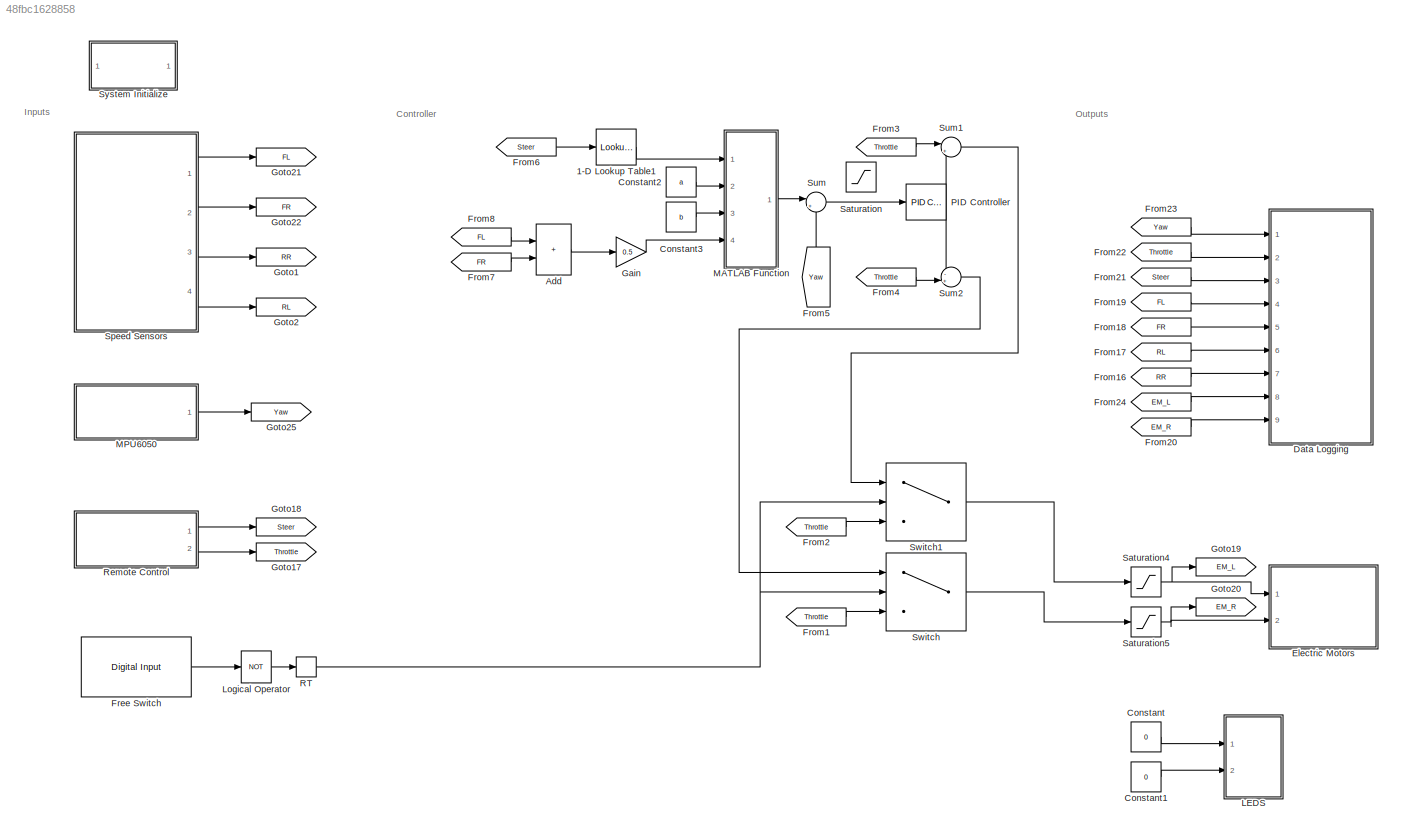
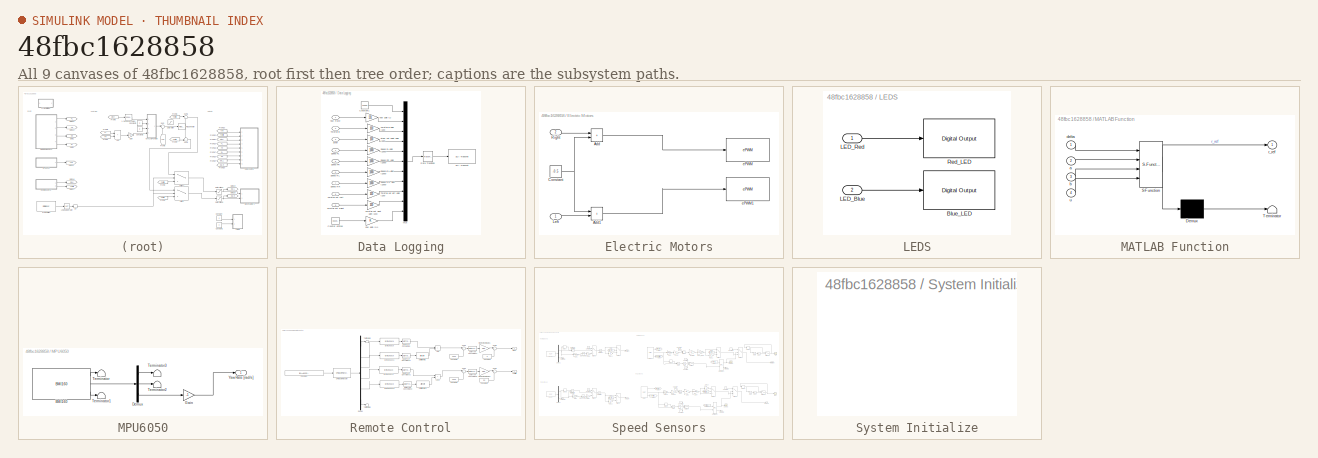
[diagram: thumbnail index - all 9 canvases of the model, root first then tree order]
MODEL slx_48fbc1628858
KIND model
CONFIG AbsTol = auto
CONFIG EnableMultiTasking = on
CONFIG FixedStep = Ts
CONFIG MaxStep = auto
CONFIG MinStep = auto
CONFIG RelTol = 1e-3
CONFIG SampleTimeConstraint = Unconstrained
CONFIG SolverName = FixedStepDiscrete
CONFIG StartTime = 0
CONFIG StopTime = Inf
WORKSPACE source: mxarray member
WORKSPACE R_wheel = 0.0565
WORKSPACE W = 0.055
WORKSPACE WD = 0.573125555665
WORKSPACE a = 0.306622172281
WORKSPACE b = 0.228377827719
WORKSPACE c = 0.38
WORKSPACE l = 0.535
WORKSPACE m = 13497.3333333
WORKSPACE m_LF = 2867.66666667
WORKSPACE m_LR = 3883.33333333
WORKSPACE m_RF = 2894
WORKSPACE m_RR = 3852.33333333
WORKSPACE m_f = 5761.66666667
WORKSPACE m_r = 7735.66666667
BLOCK [Lookup_n-D] 1-D Lookup Table1
  BreakpointsForDimension1 = [-50:50]
  InputPortMap = u0
  InternalRulePriority = Speed
  NumberOfTableDimensions = 1
  Ports = [1, 1]
  RndMeth = Simplest
  Table = -(([-50:50])/100)*0.4363*2
BLOCK [Sum] Add
  IconShape = rectangular
  Ports = [2, 1]
BLOCK [Constant] Constant
  Value = 0
BLOCK [Constant] Constant1
  Value = 0
BLOCK [Constant] Constant2
  Value = a
BLOCK [Constant] Constant3
  Value = b
BLOCK [SubSystem] Data Logging
  Ports = [9]
  RequestExecContextInheritance = off
BLOCK [Constant] Data Logging/Constant1
  OutDataTypeStr = int16
  SampleTime = 0.005
  Value = 32000
BLOCK [Reference] Data Logging/Counter Limited  REF=simulink/Sources/Counter
Limited
  Ports = [0, 1]
  SourceBlock = simulink/Sources/Counter\nLimited
  SourceProductBaseCode = SL
  SourceType = Counter Limited
BLOCK [Mux] Data Logging/Mux
  DisplayOption = bar
  Inputs = 11
  Ports = [11, 1]
BLOCK [RateTransition] Data Logging/Rate Transition
  OutPortSampleTime = 0.01
BLOCK [Reference] Data Logging/SCI Transmit  REF=c280xlib/SCI Transmit
  Ports = [1]
  SourceBlock = c280xlib/SCI Transmit
  SourceProductBaseCode = TIC2000
  SourceType = C28x SCI Transmit
BLOCK [Inport] Data Logging/Speed FL
  Port = 4
BLOCK [Gain] Data Logging/Speed FL gain (1000)
  Gain = 1000
  OutDataTypeStr = int16
BLOCK [Inport] Data Logging/Speed FR
  Port = 5
BLOCK [Gain] Data Logging/Speed FR gain (1000)
  Gain = 1000
  OutDataTypeStr = int16
BLOCK [Inport] Data Logging/Speed RL
  Port = 6
BLOCK [Gain] Data Logging/Speed RL gian (1000)
  Gain = 1000
  OutDataTypeStr = int16
BLOCK [Inport] Data Logging/Speed RR
  Port = 7
BLOCK [Gain] Data Logging/Speed RR gian (1000)
  Gain = 1000
  OutDataTypeStr = int16
BLOCK [Inport] Data Logging/Steer
  Port = 3
BLOCK [Gain] Data Logging/Steer set point gain (100)
  Gain = 100
  OutDataTypeStr = int16
BLOCK [Inport] Data Logging/Throttle in
  Port = 2
BLOCK [Gain] Data Logging/Throttle in gain (100)
  Gain = 100
  OutDataTypeStr = int16
BLOCK [Inport] Data Logging/Throttle out Left
  Port = 8
BLOCK [Inport] Data Logging/Throttle out Right
  Port = 9
BLOCK [Gain] Data Logging/Throttle out left gain (100)
  Gain = 100
  OutDataTypeStr = int16
BLOCK [Gain] Data Logging/Throttle out right gain (100)
  Gain = 100
  OutDataTypeStr = int16
BLOCK [Inport] Data Logging/Yaw Rate
BLOCK [Gain] Data Logging/Yaw gain (1)
  Gain = 131
  OutDataTypeStr = int16
BLOCK [Gain] Data Logging/Yaw gain (1)1
  OutDataTypeStr = int16
BLOCK [SubSystem] Electric Motors
  Ports = [2]
  RequestExecContextInheritance = off
BLOCK [Sum] Electric Motors/Add
  IconShape = rectangular
  Ports = [2, 1]
BLOCK [Sum] Electric Motors/Add1
  IconShape = rectangular
  Ports = [2, 1]
BLOCK [Constant] Electric Motors/Constant
  Value = -0.5
BLOCK [Inport] Electric Motors/Left
BLOCK [Inport] Electric Motors/Right
  Port = 2
BLOCK [Reference] Electric Motors/ePWM  REF=c2802xlib/ePWM
  Ports = [1]
  SourceBlock = c2802xlib/ePWM
  SourceProductBaseCode = TIC2000
  SourceType = C2802x/03x/05x/06x/M3x/37x/07x/004x/38x/002x ePWM
  UserDataPersistent = on
BLOCK [Reference] Electric Motors/ePWM1  REF=c2802xlib/ePWM
  Ports = [1]
  SourceBlock = c2802xlib/ePWM
  SourceProductBaseCode = TIC2000
  SourceType = C2802x/03x/05x/06x/M3x/37x/07x/004x/38x/002x ePWM
  UserDataPersistent = on
BLOCK [Reference] Free Switch  REF=c2837xDlib/Digital Input
  Ports = [0, 1]
  SourceBlock = c2837xDlib/Digital Input
  SourceProductBaseCode = TIC2000
  SourceType = F2837x GPIO Digital Input
  UserDataPersistent = on
BLOCK [From] From1
  GotoTag = Throttle
BLOCK [From] From16
  GotoTag = RR
BLOCK [From] From17
  GotoTag = RL
BLOCK [From] From18
  GotoTag = FR
BLOCK [From] From19
  GotoTag = FL
BLOCK [From] From2
  GotoTag = Throttle
BLOCK [From] From20
  GotoTag = EM_R
BLOCK [From] From21
  GotoTag = Steer
BLOCK [From] From22
  GotoTag = Throttle
BLOCK [From] From23
  GotoTag = Yaw
BLOCK [From] From24
  GotoTag = EM_L
BLOCK [From] From3
  GotoTag = Throttle
BLOCK [From] From4
  GotoTag = Throttle
BLOCK [From] From5
  GotoTag = Yaw
  NameLocation = right
BLOCK [From] From6
  GotoTag = Steer
BLOCK [From] From7
  GotoTag = FR
BLOCK [From] From8
  GotoTag = FL
BLOCK [Gain] Gain
  Gain = 0.5
BLOCK [Goto] Goto1
  GotoTag = RR
BLOCK [Goto] Goto17
  GotoTag = Throttle
BLOCK [Goto] Goto18
  GotoTag = Steer
BLOCK [Goto] Goto19
  GotoTag = EM_L
BLOCK [Goto] Goto2
  GotoTag = RL
BLOCK [Goto] Goto20
  GotoTag = EM_R
BLOCK [Goto] Goto21
  GotoTag = FL
BLOCK [Goto] Goto22
  GotoTag = FR
BLOCK [Goto] Goto25
  GotoTag = Yaw
BLOCK [SubSystem] LEDS
  Ports = [2]
  RequestExecContextInheritance = off
BLOCK [Reference] LEDS/Blue_LED  REF=c2837xDlib/Digital Output
  Ports = [1]
  SourceBlock = c2837xDlib/Digital Output
  SourceProductBaseCode = TIC2000
  SourceType = F2837x GPIO Digital Output
  UserDataPersistent = on
BLOCK [Inport] LEDS/LED_Blue
  Port = 2
BLOCK [Inport] LEDS/LED_Red
BLOCK [Reference] LEDS/Red_LED  REF=c2837xDlib/Digital Output
  Ports = [1]
  SourceBlock = c2837xDlib/Digital Output
  SourceProductBaseCode = TIC2000
  SourceType = F2837x GPIO Digital Output
  UserDataPersistent = on
BLOCK [Logic] Logical Operator
  AllPortsSameDT = off
  Operator = NOT
  OutDataTypeStr = boolean
  Ports = [1, 1]
BLOCK [SubSystem] MATLAB Function
  ErrorFcn = Stateflow.Translate.translate
  PermitHierarchicalResolution = ExplicitOnly
  Ports = [4, 1]
  RequestExecContextInheritance = off
  SFBlockType = MATLAB Function
  TreatAsAtomicUnit = on
BLOCK [Demux] MATLAB Function/ Demux 
  Outputs = 1
  Ports = [1, 1]
BLOCK [S-Function] MATLAB Function/ SFunction 
  EnableBusSupport = on
  FunctionName = sf_sfun
  PortCounts = [4 2]
  Ports = [4, 2]
  SFcnIsStateOwnerBlock = off
  SFunctionDeploymentMode = off
  Tag = Stateflow S-Function 2
BLOCK [Terminator] MATLAB Function/ Terminator 
BLOCK [Inport] MATLAB Function/a
  Port = 2
BLOCK [Inport] MATLAB Function/b
  Port = 3
BLOCK [Inport] MATLAB Function/delta
BLOCK [Outport] MATLAB Function/r_ref
BLOCK [Inport] MATLAB Function/u
  Port = 4
BLOCK [SubSystem] MPU6050
  Ports = [0, 1]
  RequestExecContextInheritance = off
BLOCK [Reference] MPU6050/BMI160  REF=c2000sensorslib/BMI160
  Ports = [0, 3]
  SourceBlock = c2000sensorslib/BMI160
  SourceProductBaseCode = TIC2000
  SourceType = matlabshared.sensors.simulink.BMI160Block
BLOCK [Demux] MPU6050/Demux
  Outputs = 3
  Ports = [1, 3]
BLOCK [Gain] MPU6050/Gain
  Gain = -1
BLOCK [Terminator] MPU6050/Terminator
BLOCK [Terminator] MPU6050/Terminator1
BLOCK [Terminator] MPU6050/Terminator2
BLOCK [Terminator] MPU6050/Terminator3
BLOCK [Outport] MPU6050/Yaw Rate [rad//s]
  VectorParamsAs1DForOutWhenUnconnected = off
BLOCK [Reference] PID Controller  REF=slpidlib/PID Controller
  Ports = [1, 1]
  SourceBlock = slpidlib/PID Controller
  SourceProductBaseCode = SL
  SourceType = PID 1dof
BLOCK [RateTransition] RT
  OutPortSampleTime = 0.005
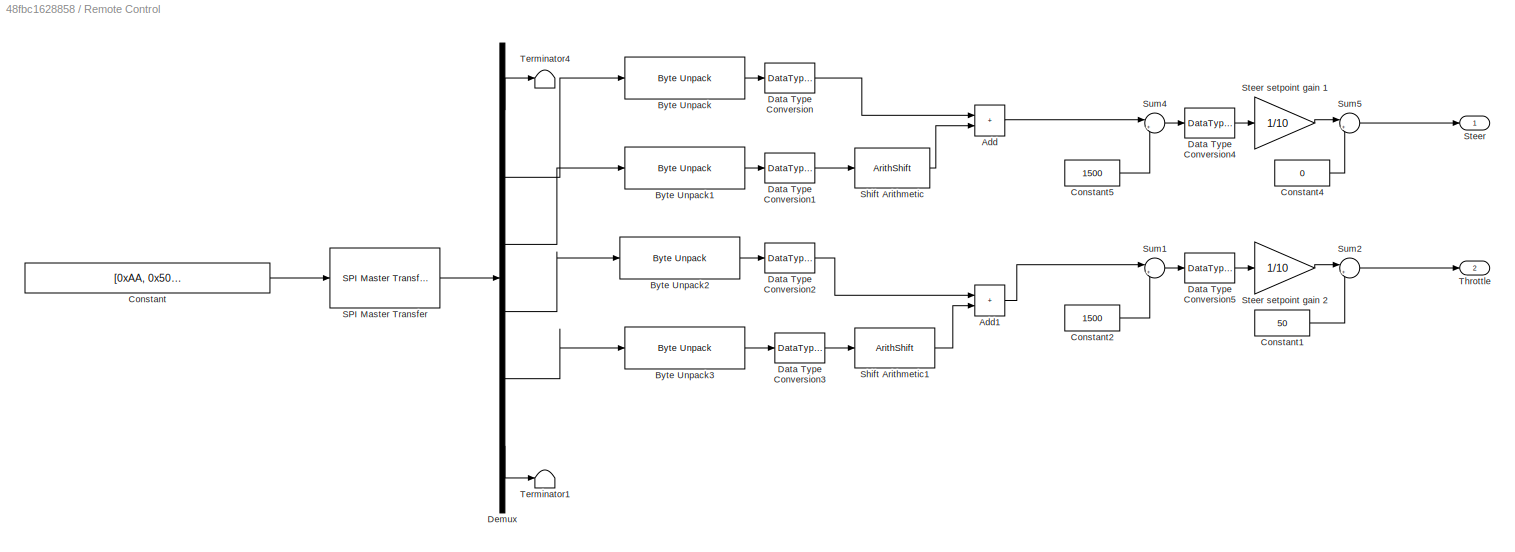
BLOCK [SubSystem] Remote Control
  Ports = [0, 2]
  RequestExecContextInheritance = off
BLOCK [Sum] Remote Control/Add
  IconShape = rectangular
  Ports = [2, 1]
BLOCK [Sum] Remote Control/Add1
  IconShape = rectangular
  Ports = [2, 1]
BLOCK [Reference] Remote Control/Byte Unpack  REF=svdutilitieslib/Byte Unpack
  Ports = [1, 1]
  SourceBlock = svdutilitieslib/Byte Unpack
  SourceProductBaseCode = ANDROID,ARDUINO,ML_ARDUINO,ECCORTEXA,ECCORTEXR,SC_BEAGLEBONE_BLUE,EC_FREEDOM_BOARD,EC_FRDM_K64F,INTEL_BLOCKSET,MICROBIT,NUCLEO,NVIDIA,PX4AUTOPILOTS,RASPPIIO,STMICRODIS,TIC2000,XILINX_BLOCKSET  <repeated x4 — deduplicated; at blocks: Byte Unpack, Byte Unpack1, Byte Unpack2, Byte Unpack3>
  SourceType = Byte Unpack
BLOCK [Reference] Remote Control/Byte Unpack1  REF=svdutilitieslib/Byte Unpack
  Ports = [1, 1]
  SourceBlock = svdutilitieslib/Byte Unpack
  SourceType = Byte Unpack
BLOCK [Reference] Remote Control/Byte Unpack2  REF=svdutilitieslib/Byte Unpack
  Ports = [1, 1]
  SourceBlock = svdutilitieslib/Byte Unpack
  SourceType = Byte Unpack
BLOCK [Reference] Remote Control/Byte Unpack3  REF=svdutilitieslib/Byte Unpack
  Ports = [1, 1]
  SourceBlock = svdutilitieslib/Byte Unpack
  SourceType = Byte Unpack
BLOCK [Constant] Remote Control/Constant
  OutDataTypeStr = uint16
  Value = [0xAA, 0x50, 0x04, 0xA0, 232, 3]
BLOCK [Constant] Remote Control/Constant1
  OutDataTypeStr = single
  SampleTime = 0.005
  Value = 50
BLOCK [Constant] Remote Control/Constant2
  OutDataTypeStr = single
  SampleTime = Ts
  Value = 1500
BLOCK [Constant] Remote Control/Constant4
  OutDataTypeStr = single
  SampleTime = 0.005
  Value = 0
BLOCK [Constant] Remote Control/Constant5
  OutDataTypeStr = single
  SampleTime = Ts
  Value = 1500
BLOCK [DataTypeConversion] Remote Control/Data Type Conversion
  OutDataTypeStr = uint16
  RndMeth = Floor
  SaturateOnIntegerOverflow = off
BLOCK [DataTypeConversion] Remote Control/Data Type Conversion1
  OutDataTypeStr = uint16
  RndMeth = Floor
  SaturateOnIntegerOverflow = off
BLOCK [DataTypeConversion] Remote Control/Data Type Conversion2
  OutDataTypeStr = uint16
  RndMeth = Floor
  SaturateOnIntegerOverflow = off
BLOCK [DataTypeConversion] Remote Control/Data Type Conversion3
  OutDataTypeStr = uint16
  RndMeth = Floor
  SaturateOnIntegerOverflow = off
BLOCK [DataTypeConversion] Remote Control/Data Type Conversion4
  OutDataTypeStr = single
  RndMeth = Floor
  SaturateOnIntegerOverflow = off
BLOCK [DataTypeConversion] Remote Control/Data Type Conversion5
  OutDataTypeStr = single
  RndMeth = Floor
  SaturateOnIntegerOverflow = off
BLOCK [Demux] Remote Control/Demux
  Outputs = 6
  Ports = [1, 6]
BLOCK [Reference] Remote Control/SPI Master Transfer  REF=c280xlib/SPI Master Transfer
  Ports = [1, 1]
  SourceBlock = c280xlib/SPI Master Transfer
  SourceProductBaseCode = TIC2000
  SourceType = codertarget.tic2000.blocks.SPIMasterTransfer
BLOCK [ArithShift] Remote Control/Shift Arithmetic
  BitShiftDirection = Left
  BitShiftNumber = 8
  InputPortMap = u0
  Ports = [1, 1]
BLOCK [ArithShift] Remote Control/Shift Arithmetic1
  BitShiftDirection = Left
  BitShiftNumber = 8
  InputPortMap = u0
  Ports = [1, 1]
BLOCK [Outport] Remote Control/Steer
  VectorParamsAs1DForOutWhenUnconnected = off
BLOCK [Gain] Remote Control/Steer setpoint gain 1
  Gain = 1/10
  OutDataTypeStr = single
BLOCK [Gain] Remote Control/Steer setpoint gain 2
  Gain = 1/10
  OutDataTypeStr = single
BLOCK [Sum] Remote Control/Sum1
  Inputs = |+-
  Ports = [2, 1]
BLOCK [Sum] Remote Control/Sum2
  Inputs = |++
  Ports = [2, 1]
BLOCK [Sum] Remote Control/Sum4
  Inputs = |+-
  Ports = [2, 1]
BLOCK [Sum] Remote Control/Sum5
  Inputs = |++
  Ports = [2, 1]
BLOCK [Terminator] Remote Control/Terminator1
BLOCK [Terminator] Remote Control/Terminator4
BLOCK [Outport] Remote Control/Throttle
  Port = 2
  VectorParamsAs1DForOutWhenUnconnected = off
BLOCK [Saturate] Saturation
  Commented = on
  LowerLimit = -2.5
  UpperLimit = 2.5
BLOCK [Saturate] Saturation4
  LowerLimit = 20
  UpperLimit = 100
BLOCK [Saturate] Saturation5
  LowerLimit = 20
  UpperLimit = 100
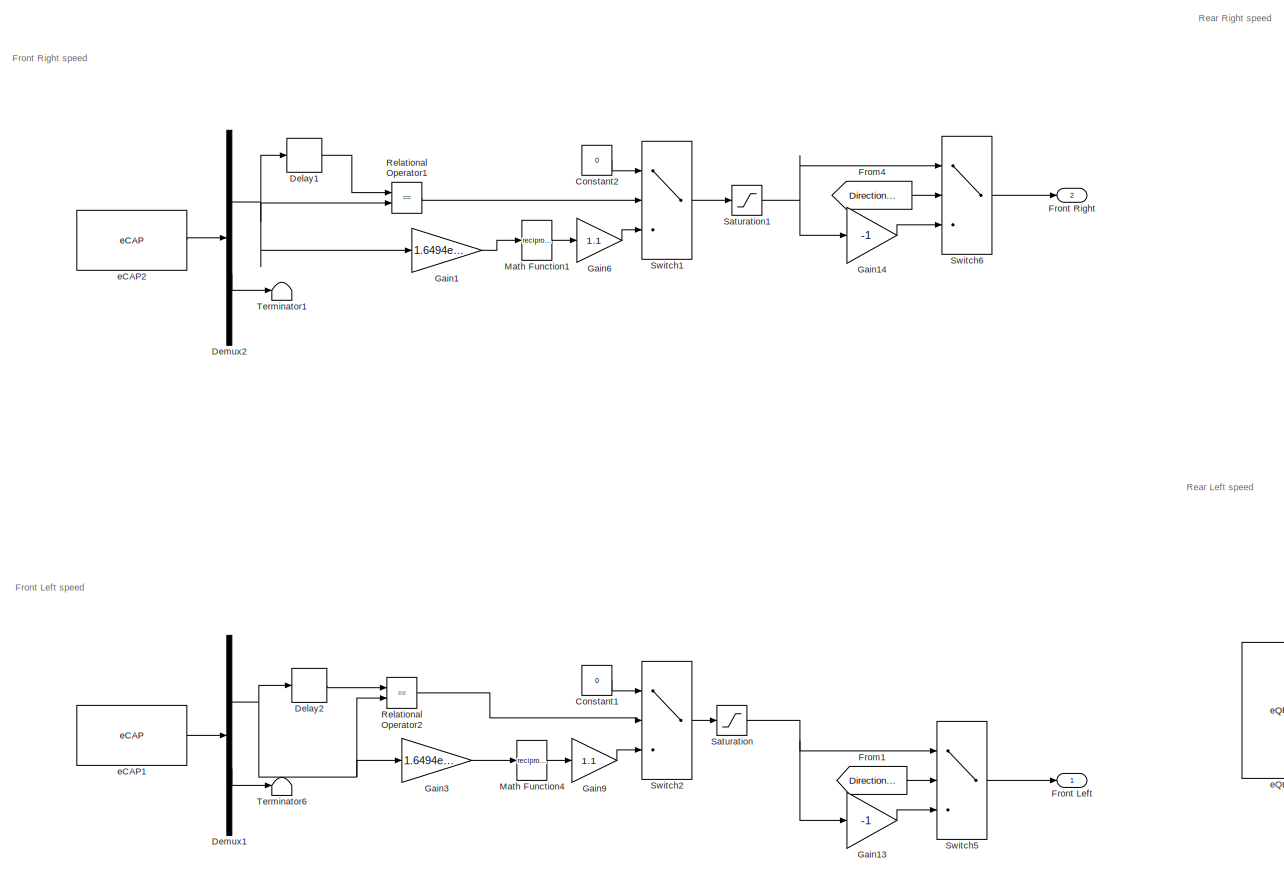
[diagram: Speed Sensors - part 1/4, left side, full height]
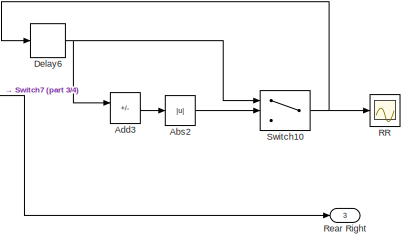
[diagram: Speed Sensors - part 2/4, top right region]
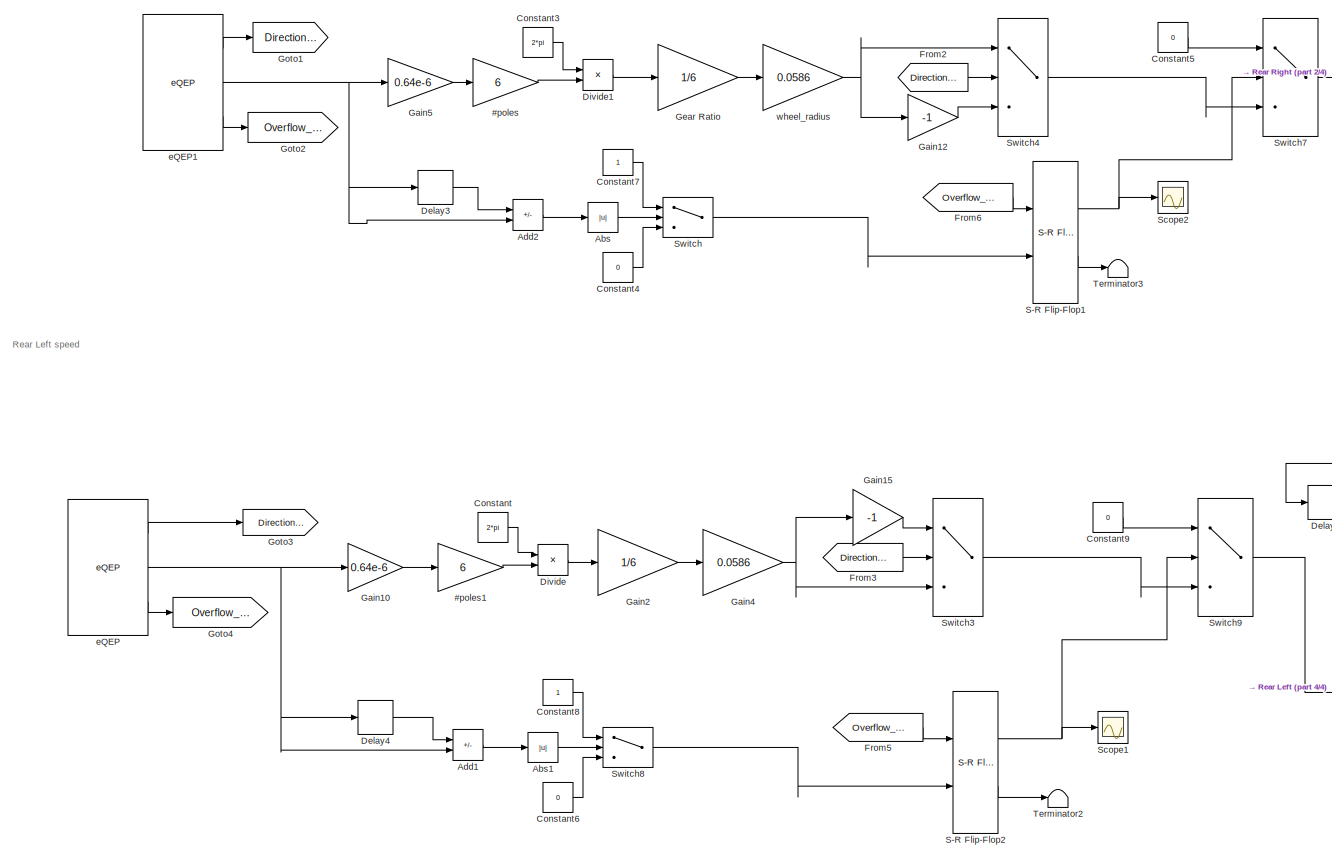
[diagram: Speed Sensors - part 3/4, center side, full height]
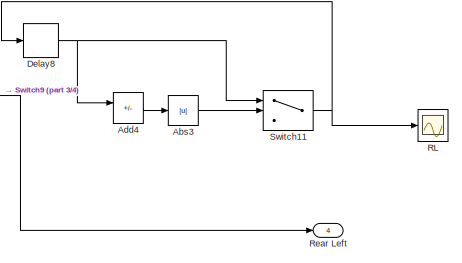
[diagram: Speed Sensors - part 4/4, bottom right region]
BLOCK [SubSystem] Speed Sensors
  Ports = [0, 4]
  RequestExecContextInheritance = off
BLOCK [Gain] Speed Sensors/#poles
  Gain = 6
BLOCK [Gain] Speed Sensors/#poles1
  Gain = 6
BLOCK [Abs] Speed Sensors/Abs
  SaturateOnIntegerOverflow = off
BLOCK [Abs] Speed Sensors/Abs1
  SaturateOnIntegerOverflow = off
BLOCK [Abs] Speed Sensors/Abs2
  Commented = on
  SaturateOnIntegerOverflow = off
BLOCK [Abs] Speed Sensors/Abs3
  Commented = on
  SaturateOnIntegerOverflow = off
BLOCK [Sum] Speed Sensors/Add1
  AccumDataTypeStr = Inherit: Same as first input
  IconShape = rectangular
  Inputs = +-
  OutDataTypeStr = single
  Ports = [2, 1]
BLOCK [Sum] Speed Sensors/Add2
  AccumDataTypeStr = Inherit: Same as first input
  IconShape = rectangular
  Inputs = +-
  OutDataTypeStr = single
  Ports = [2, 1]
BLOCK [Sum] Speed Sensors/Add3
  Commented = on
  IconShape = rectangular
  Inputs = +-
  Ports = [2, 1]
BLOCK [Sum] Speed Sensors/Add4
  Commented = on
  IconShape = rectangular
  Inputs = +-
  Ports = [2, 1]
BLOCK [Constant] Speed Sensors/Constant
  Value = 2*pi
BLOCK [Constant] Speed Sensors/Constant1
  OutDataTypeStr = int8
  SampleTime = 0.005
  Value = 0
BLOCK [Constant] Speed Sensors/Constant2
  OutDataTypeStr = int8
  SampleTime = 0.005
  Value = 0
BLOCK [Constant] Speed Sensors/Constant3
  Value = 2*pi
BLOCK [Constant] Speed Sensors/Constant4
  OutDataTypeStr = boolean
  Value = 0
BLOCK [Constant] Speed Sensors/Constant5
  Value = 0
BLOCK [Constant] Speed Sensors/Constant6
  OutDataTypeStr = boolean
  Value = 0
BLOCK [Constant] Speed Sensors/Constant7
  OutDataTypeStr = boolean
BLOCK [Constant] Speed Sensors/Constant8
  OutDataTypeStr = boolean
BLOCK [Constant] Speed Sensors/Constant9
  Value = 0
BLOCK [Delay] Speed Sensors/Delay1
  DelayLength = 60
  InputPortMap = u0
  Ports = [1, 1]
BLOCK [Delay] Speed Sensors/Delay2
  DelayLength = 60
  InputPortMap = u0
  Ports = [1, 1]
BLOCK [Delay] Speed Sensors/Delay3
  DelayLength = 1
  InputPortMap = u0
  Ports = [1, 1]
BLOCK [Delay] Speed Sensors/Delay4
  DelayLength = 1
  InputPortMap = u0
  Ports = [1, 1]
BLOCK [Delay] Speed Sensors/Delay6
  Commented = on
  DelayLength = 1
  InputPortMap = u0
  Ports = [1, 1]
BLOCK [Delay] Speed Sensors/Delay8
  Commented = on
  DelayLength = 1
  InputPortMap = u0
  Ports = [1, 1]
BLOCK [Demux] Speed Sensors/Demux1
  Outputs = 2
  Ports = [1, 2]
BLOCK [Demux] Speed Sensors/Demux2
  Outputs = 2
  Ports = [1, 2]
BLOCK [Product] Speed Sensors/Divide
  Inputs = */
  Ports = [2, 1]
BLOCK [Product] Speed Sensors/Divide1
  Inputs = */
  Ports = [2, 1]
BLOCK [From] Speed Sensors/From1
  GotoTag = Direction_RR
BLOCK [From] Speed Sensors/From2
  GotoTag = Direction_RR
BLOCK [From] Speed Sensors/From3
  GotoTag = Direction_RL
BLOCK [From] Speed Sensors/From4
  GotoTag = Direction_RR
BLOCK [From] Speed Sensors/From5
  GotoTag = Overflow_RL
BLOCK [From] Speed Sensors/From6
  GotoTag = Overflow_RR
BLOCK [Outport] Speed Sensors/Front Left
  VectorParamsAs1DForOutWhenUnconnected = off
BLOCK [Outport] Speed Sensors/Front Right
  Port = 2
  VectorParamsAs1DForOutWhenUnconnected = off
BLOCK [Gain] Speed Sensors/Gain1
  Gain = 1.6494e-07
BLOCK [Gain] Speed Sensors/Gain10
  Gain = 0.64e-6
BLOCK [Gain] Speed Sensors/Gain12
  Gain = -1
BLOCK [Gain] Speed Sensors/Gain13
  Gain = -1
BLOCK [Gain] Speed Sensors/Gain14
  Gain = -1
BLOCK [Gain] Speed Sensors/Gain15
  Gain = -1
BLOCK [Gain] Speed Sensors/Gain2
  Gain = 1/6
BLOCK [Gain] Speed Sensors/Gain3
  Gain = 1.6494e-07
BLOCK [Gain] Speed Sensors/Gain4
  Gain = 0.0586
BLOCK [Gain] Speed Sensors/Gain5
  Gain = 0.64e-6
BLOCK [Gain] Speed Sensors/Gain6
  Gain = 1.1
BLOCK [Gain] Speed Sensors/Gain9
  Gain = 1.1
BLOCK [Gain] Speed Sensors/Gear Ratio
  Gain = 1/6
BLOCK [Goto] Speed Sensors/Goto1
  GotoTag = Direction_RR
BLOCK [Goto] Speed Sensors/Goto2
  GotoTag = Overflow_RR
BLOCK [Goto] Speed Sensors/Goto3
  GotoTag = Direction_RL
BLOCK [Goto] Speed Sensors/Goto4
  GotoTag = Overflow_RL
BLOCK [Math] Speed Sensors/Math Function1
  Operator = reciprocal
  Ports = [1, 1]
  SignedPower = on
BLOCK [Math] Speed Sensors/Math Function4
  Operator = reciprocal
  Ports = [1, 1]
  SignedPower = on
BLOCK [Scope] Speed Sensors/RL
  Commented = on
  Floating = off
  NameLocation = right
  NumInputPorts = 1
  Ports = [1]
  ScopeSpecificationString = Simulink.scopes.TimeScopeBlockCfg('CurrentConfiguration', extmgr.ConfigurationSet(extmgr.Configuration('Core','General UI',true),extmgr.Configuration('Core','Source UI',true),extmgr.Configuration('Sources','WiredSimulink',true,'DataLoggingVariableName','ScopeData4'),extmgr.Configuration('Visuals','Time Domain',true,'SerializedDisplays',{struct('MinYLimReal','4.16255','MaxYLimReal','24.16255','YLab...<+1414ch>
BLOCK [Scope] Speed Sensors/RR
  Commented = on
  Floating = off
  NumInputPorts = 1
  Ports = [1]
  ScopeSpecificationString = Simulink.scopes.TimeScopeBlockCfg('CurrentConfiguration', extmgr.ConfigurationSet(extmgr.Configuration('Core','General UI',true),extmgr.Configuration('Core','Source UI',true),extmgr.Configuration('Sources','WiredSimulink',true,'DataLoggingVariableName','ScopeData5'),extmgr.Configuration('Visuals','Time Domain',true,'SerializedDisplays',{struct('MinYLimReal','-1.00000','MaxYLimReal','1.00000','YLab...<+1414ch>
BLOCK [Outport] Speed Sensors/Rear Left
  Port = 4
  VectorParamsAs1DForOutWhenUnconnected = off
BLOCK [Outport] Speed Sensors/Rear Right
  Port = 3
  VectorParamsAs1DForOutWhenUnconnected = off
BLOCK [RelationalOperator] Speed Sensors/Relational Operator1
  InputSameDT = off
  Operator = ==
  OutDataTypeStr = boolean
  Ports = [2, 1]
BLOCK [RelationalOperator] Speed Sensors/Relational Operator2
  InputSameDT = off
  Operator = ==
  OutDataTypeStr = boolean
  Ports = [2, 1]
BLOCK [Reference] Speed Sensors/S-R Flip-Flop1  REF=simulink_extras/Flip Flops/S-R
Flip-Flop
  Ports = [2, 2]
  SourceBlock = simulink_extras/Flip Flops/S-R\nFlip-Flop
  SourceProductBaseCode = SL
  SourceType = SRFlipFlop
BLOCK [Reference] Speed Sensors/S-R Flip-Flop2  REF=simulink_extras/Flip Flops/S-R
Flip-Flop
  Ports = [2, 2]
  SourceBlock = simulink_extras/Flip Flops/S-R\nFlip-Flop
  SourceProductBaseCode = SL
  SourceType = SRFlipFlop
BLOCK [Saturate] Speed Sensors/Saturation
  LowerLimit = 0
  UpperLimit = 40/3.6
BLOCK [Saturate] Speed Sensors/Saturation1
  LowerLimit = 0
  UpperLimit = 40/3.6
BLOCK [Scope] Speed Sensors/Scope1
  Floating = off
  NumInputPorts = 1
  Ports = [1]
  ScopeSpecificationString = Simulink.scopes.TimeScopeBlockCfg('CurrentConfiguration', extmgr.ConfigurationSet(extmgr.Configuration('Core','General UI',true),extmgr.Configuration('Core','Source UI',true),extmgr.Configuration('Sources','WiredSimulink',true,'DataLoggingVariableName','ScopeData3'),extmgr.Configuration('Visuals','Time Domain',true,'SerializedDisplays',{struct('MinYLimReal','0.9','MaxYLimReal','1.1','YLabelReal','...<+1393ch>
BLOCK [Scope] Speed Sensors/Scope2
  Floating = off
  NumInputPorts = 1
  Ports = [1]
  ScopeSpecificationString = Simulink.scopes.TimeScopeBlockCfg('CurrentConfiguration', extmgr.ConfigurationSet(extmgr.Configuration('Core','General UI',true),extmgr.Configuration('Core','Source UI',true),extmgr.Configuration('Sources','WiredSimulink',true,'DataLoggingVariableName','ScopeData4'),extmgr.Configuration('Visuals','Time Domain',true,'SerializedDisplays',{struct('MinYLimReal','0.9','MaxYLimReal','1.1','YLabelReal','...<+1393ch>
BLOCK [Switch] Speed Sensors/Switch
  Criteria = u2 ~= 0
  InputSameDT = off
  SaturateOnIntegerOverflow = off
  Threshold = 10
BLOCK [Switch] Speed Sensors/Switch1
  Criteria = u2 > Threshold
  InputSameDT = off
  OutDataTypeStr = single
  SaturateOnIntegerOverflow = off
BLOCK [Switch] Speed Sensors/Switch10
  Commented = on
  Criteria = u2 > Threshold
  InputSameDT = off
  SaturateOnIntegerOverflow = off
  Threshold = 1
BLOCK [Switch] Speed Sensors/Switch11
  Commented = on
  Criteria = u2 > Threshold
  InputSameDT = off
  SaturateOnIntegerOverflow = off
  Threshold = 1
BLOCK [Switch] Speed Sensors/Switch2
  Criteria = u2 > Threshold
  InputSameDT = off
  OutDataTypeStr = single
  SaturateOnIntegerOverflow = off
BLOCK [Switch] Speed Sensors/Switch3
  Criteria = u2 > Threshold
  InputSameDT = off
  OutDataTypeStr = single
  SaturateOnIntegerOverflow = off
BLOCK [Switch] Speed Sensors/Switch4
  Criteria = u2 > Threshold
  InputSameDT = off
  OutDataTypeStr = single
  SaturateOnIntegerOverflow = off
BLOCK [Switch] Speed Sensors/Switch5
  Criteria = u2 > Threshold
  InputSameDT = off
  OutDataTypeStr = single
  SaturateOnIntegerOverflow = off
BLOCK [Switch] Speed Sensors/Switch6
  Criteria = u2 > Threshold
  InputSameDT = off
  OutDataTypeStr = single
  SaturateOnIntegerOverflow = off
BLOCK [Switch] Speed Sensors/Switch7
  Criteria = u2 > Threshold
  InputSameDT = off
  OutDataTypeStr = single
  SaturateOnIntegerOverflow = off
  Threshold = 0.5
BLOCK [Switch] Speed Sensors/Switch8
  Criteria = u2 ~= 0
  InputSameDT = off
  SaturateOnIntegerOverflow = off
  Threshold = 10
BLOCK [Switch] Speed Sensors/Switch9
  Criteria = u2 > Threshold
  InputSameDT = off
  OutDataTypeStr = single
  SaturateOnIntegerOverflow = off
  Threshold = 0.5
BLOCK [Terminator] Speed Sensors/Terminator1
BLOCK [Terminator] Speed Sensors/Terminator2
BLOCK [Terminator] Speed Sensors/Terminator3
BLOCK [Terminator] Speed Sensors/Terminator6
BLOCK [Reference] Speed Sensors/eCAP1  REF=c280xlib/eCAP
  Ports = [0, 1]
  SourceBlock = c280xlib/eCAP
  SourceProductBaseCode = TIC2000
  SourceType = C28x eCAP
BLOCK [Reference] Speed Sensors/eCAP2  REF=c280xlib/eCAP
  Ports = [0, 1]
  SourceBlock = c280xlib/eCAP
  SourceProductBaseCode = TIC2000
  SourceType = C28x eCAP
BLOCK [Reference] Speed Sensors/eQEP  REF=c280xlib/eQEP
  Ports = [0, 3]
  SourceBlock = c280xlib/eQEP
  SourceProductBaseCode = TIC2000
  SourceType = C28x eQEP
BLOCK [Reference] Speed Sensors/eQEP1  REF=c280xlib/eQEP
  Ports = [0, 3]
  SourceBlock = c280xlib/eQEP
  SourceProductBaseCode = TIC2000
  SourceType = C28x eQEP
BLOCK [Gain] Speed Sensors/wheel_radius
  Gain = 0.0586
BLOCK [Sum] Sum
  Inputs = |+-
  Ports = [2, 1]
BLOCK [Sum] Sum1
  Inputs = |++
  Ports = [2, 1]
BLOCK [Sum] Sum2
  Inputs = -+|
  Ports = [2, 1]
BLOCK [Switch] Switch
  Criteria = u2 > Threshold
  InputSameDT = off
  OutDataTypeStr = single
  SaturateOnIntegerOverflow = off
BLOCK [Switch] Switch1
  Criteria = u2 > Threshold
  InputSameDT = off
  OutDataTypeStr = single
  SaturateOnIntegerOverflow = off
BLOCK [SubSystem] System Initialize
  CopyFcn = cccopyfcn(gcb)
  OpenFcn = ccopenfcn('System Initialize Function')
  Ports = []
  RequestExecContextInheritance = off
ANNOTATION (root): Controller
ANNOTATION (root): Inputs
ANNOTATION (root): Outputs
ANNOTATION Speed Sensors: Front Left speed
ANNOTATION Speed Sensors: Front Right speed
ANNOTATION Speed Sensors: Rear Left speed
ANNOTATION Speed Sensors: Rear Right speed
LINE 1-D Lookup Table1:1 -> MATLAB Function:1
LINE Add:1 -> Gain:1
LINE Constant1:1 -> LEDS:2
LINE Constant2:1 -> MATLAB Function:2
LINE Constant3:1 -> MATLAB Function:3
LINE Constant:1 -> LEDS:1
LINE Data Logging/Constant1:1 -> Data Logging/Mux:1
LINE Data Logging/Counter Limited:1 -> Data Logging/Yaw gain (1)1:1
LINE Data Logging/Mux:1 -> Data Logging/Rate Transition:1
LINE Data Logging/Rate Transition:1 -> Data Logging/SCI Transmit:1
LINE Data Logging/Speed FL gain (1000):1 -> Data Logging/Mux:5
LINE Data Logging/Speed FL:1 -> Data Logging/Speed FL gain (1000):1
LINE Data Logging/Speed FR gain (1000):1 -> Data Logging/Mux:6
LINE Data Logging/Speed FR:1 -> Data Logging/Speed FR gain (1000):1
LINE Data Logging/Speed RL gian (1000):1 -> Data Logging/Mux:7
LINE Data Logging/Speed RL:1 -> Data Logging/Speed RL gian (1000):1
LINE Data Logging/Speed RR gian (1000):1 -> Data Logging/Mux:8
LINE Data Logging/Speed RR:1 -> Data Logging/Speed RR gian (1000):1
LINE Data Logging/Steer set point gain (100):1 -> Data Logging/Mux:4
LINE Data Logging/Steer:1 -> Data Logging/Steer set point gain (100):1
LINE Data Logging/Throttle in gain (100):1 -> Data Logging/Mux:3
LINE Data Logging/Throttle in:1 -> Data Logging/Throttle in gain (100):1
LINE Data Logging/Throttle out Left:1 -> Data Logging/Throttle out left gain (100):1
LINE Data Logging/Throttle out Right:1 -> Data Logging/Throttle out right gain (100):1
LINE Data Logging/Throttle out left gain (100):1 -> Data Logging/Mux:9
LINE Data Logging/Throttle out right gain (100):1 -> Data Logging/Mux:10
LINE Data Logging/Yaw Rate:1 -> Data Logging/Yaw gain (1):1
LINE Data Logging/Yaw gain (1)1:1 -> Data Logging/Mux:11
LINE Data Logging/Yaw gain (1):1 -> Data Logging/Mux:2
LINE Electric Motors/Add1:1 -> Electric Motors/ePWM1:1
LINE Electric Motors/Add:1 -> Electric Motors/ePWM:1
NET Electric Motors/Constant:1 -> Electric Motors/Add1:1, Electric Motors/Add:2
LINE Electric Motors/Left:1 -> Electric Motors/Add1:2
LINE Electric Motors/Right:1 -> Electric Motors/Add:1
LINE Free Switch:1 -> Logical Operator:1
LINE From16:1 -> Data Logging:7
LINE From17:1 -> Data Logging:6
LINE From18:1 -> Data Logging:5
LINE From19:1 -> Data Logging:4
LINE From1:1 -> Switch:3
LINE From20:1 -> Data Logging:9
LINE From21:1 -> Data Logging:3
LINE From22:1 -> Data Logging:2
LINE From23:1 -> Data Logging:1
LINE From24:1 -> Data Logging:8
LINE From2:1 -> Switch1:3
LINE From3:1 -> Sum1:1
LINE From4:1 -> Sum2:2
LINE From5:1 -> Sum:2
LINE From6:1 -> 1-D Lookup Table1:1
LINE From7:1 -> Add:2
LINE From8:1 -> Add:1
LINE Gain:1 -> MATLAB Function:4
LINE LEDS/LED_Blue:1 -> LEDS/Blue_LED:1
LINE LEDS/LED_Red:1 -> LEDS/Red_LED:1
LINE Logical Operator:1 -> RT:1
LINE MATLAB Function:1 -> Sum:1
LINE MPU6050/BMI160:1 -> MPU6050/Terminator:1
LINE MPU6050/BMI160:2 -> MPU6050/Demux:1
LINE MPU6050/BMI160:3 -> MPU6050/Terminator1:1
LINE MPU6050/Demux:1 -> MPU6050/Terminator3:1
LINE MPU6050/Demux:2 -> MPU6050/Terminator2:1
LINE MPU6050/Demux:3 -> MPU6050/Gain:1
LINE MPU6050/Gain:1 -> MPU6050/Yaw Rate [rad//s]:1
LINE MPU6050:1 -> Goto25:1
NET PID Controller:1 -> Sum1:2, Sum2:1
NET RT:1 -> Switch1:2, Switch:2
LINE Remote Control/Add1:1 -> Remote Control/Sum1:1
LINE Remote Control/Add:1 -> Remote Control/Sum4:1
LINE Remote Control/Byte Unpack1:1 -> Remote Control/Data Type Conversion1:1
LINE Remote Control/Byte Unpack2:1 -> Remote Control/Data Type Conversion2:1
LINE Remote Control/Byte Unpack3:1 -> Remote Control/Data Type Conversion3:1
LINE Remote Control/Byte Unpack:1 -> Remote Control/Data Type Conversion:1
LINE Remote Control/Constant1:1 -> Remote Control/Sum2:2
LINE Remote Control/Constant2:1 -> Remote Control/Sum1:2
LINE Remote Control/Constant4:1 -> Remote Control/Sum5:2
LINE Remote Control/Constant5:1 -> Remote Control/Sum4:2
LINE Remote Control/Constant:1 -> Remote Control/SPI Master Transfer:1
LINE Remote Control/Data Type Conversion1:1 -> Remote Control/Shift Arithmetic:1
LINE Remote Control/Data Type Conversion2:1 -> Remote Control/Add1:1
LINE Remote Control/Data Type Conversion3:1 -> Remote Control/Shift Arithmetic1:1
LINE Remote Control/Data Type Conversion4:1 -> Remote Control/Steer setpoint gain 1:1
LINE Remote Control/Data Type Conversion5:1 -> Remote Control/Steer setpoint gain 2:1
LINE Remote Control/Data Type Conversion:1 -> Remote Control/Add:1
LINE Remote Control/Demux:1 -> Remote Control/Terminator4:1
LINE Remote Control/Demux:2 -> Remote Control/Byte Unpack:1
LINE Remote Control/Demux:3 -> Remote Control/Byte Unpack1:1
LINE Remote Control/Demux:4 -> Remote Control/Byte Unpack2:1
LINE Remote Control/Demux:5 -> Remote Control/Byte Unpack3:1
LINE Remote Control/Demux:6 -> Remote Control/Terminator1:1
LINE Remote Control/SPI Master Transfer:1 -> Remote Control/Demux:1
LINE Remote Control/Shift Arithmetic1:1 -> Remote Control/Add1:2
LINE Remote Control/Shift Arithmetic:1 -> Remote Control/Add:2
LINE Remote Control/Steer setpoint gain 1:1 -> Remote Control/Sum5:1
LINE Remote Control/Steer setpoint gain 2:1 -> Remote Control/Sum2:1
LINE Remote Control/Sum1:1 -> Remote Control/Data Type Conversion5:1
LINE Remote Control/Sum2:1 -> Remote Control/Throttle:1
LINE Remote Control/Sum4:1 -> Remote Control/Data Type Conversion4:1
LINE Remote Control/Sum5:1 -> Remote Control/Steer:1
LINE Remote Control:1 -> Goto18:1
LINE Remote Control:2 -> Goto17:1
NET Saturation4:1 -> Electric Motors:1, Goto19:1
NET Saturation5:1 -> Electric Motors:2, Goto20:1
LINE Speed Sensors/#poles1:1 -> Speed Sensors/Divide:2
LINE Speed Sensors/#poles:1 -> Speed Sensors/Divide1:2
LINE Speed Sensors/Abs1:1 -> Speed Sensors/Switch8:2
LINE Speed Sensors/Abs2:1 -> Speed Sensors/Switch10:2
LINE Speed Sensors/Abs3:1 -> Speed Sensors/Switch11:2
LINE Speed Sensors/Abs:1 -> Speed Sensors/Switch:2
LINE Speed Sensors/Add1:1 -> Speed Sensors/Abs1:1
LINE Speed Sensors/Add2:1 -> Speed Sensors/Abs:1
LINE Speed Sensors/Add3:1 -> Speed Sensors/Abs2:1
LINE Speed Sensors/Add4:1 -> Speed Sensors/Abs3:1
LINE Speed Sensors/Constant1:1 -> Speed Sensors/Switch2:1
LINE Speed Sensors/Constant2:1 -> Speed Sensors/Switch1:1
LINE Speed Sensors/Constant3:1 -> Speed Sensors/Divide1:1
LINE Speed Sensors/Constant4:1 -> Speed Sensors/Switch:3
LINE Speed Sensors/Constant5:1 -> Speed Sensors/Switch7:1
LINE Speed Sensors/Constant6:1 -> Speed Sensors/Switch8:3
LINE Speed Sensors/Constant7:1 -> Speed Sensors/Switch:1
LINE Speed Sensors/Constant8:1 -> Speed Sensors/Switch8:1
LINE Speed Sensors/Constant9:1 -> Speed Sensors/Switch9:1
LINE Speed Sensors/Constant:1 -> Speed Sensors/Divide:1
LINE Speed Sensors/Delay1:1 -> Speed Sensors/Relational Operator1:1
LINE Speed Sensors/Delay2:1 -> Speed Sensors/Relational Operator2:1
LINE Speed Sensors/Delay3:1 -> Speed Sensors/Add2:1
LINE Speed Sensors/Delay4:1 -> Speed Sensors/Add1:1
NET Speed Sensors/Delay6:1 -> Speed Sensors/Add3:1, Speed Sensors/Switch10:1
NET Speed Sensors/Delay8:1 -> Speed Sensors/Add4:1, Speed Sensors/Switch11:1
NET Speed Sensors/Demux1:1 -> Speed Sensors/Delay2:1, Speed Sensors/Gain3:1, Speed Sensors/Relational Operator2:2
LINE Speed Sensors/Demux1:2 -> Speed Sensors/Terminator6:1
NET Speed Sensors/Demux2:1 -> Speed Sensors/Delay1:1, Speed Sensors/Gain1:1, Speed Sensors/Relational Operator1:2
LINE Speed Sensors/Demux2:2 -> Speed Sensors/Terminator1:1
LINE Speed Sensors/Divide1:1 -> Speed Sensors/Gear Ratio:1
LINE Speed Sensors/Divide:1 -> Speed Sensors/Gain2:1
LINE Speed Sensors/From1:1 -> Speed Sensors/Switch5:2
LINE Speed Sensors/From2:1 -> Speed Sensors/Switch4:2
LINE Speed Sensors/From3:1 -> Speed Sensors/Switch3:2
LINE Speed Sensors/From4:1 -> Speed Sensors/Switch6:2
LINE Speed Sensors/From5:1 -> Speed Sensors/S-R Flip-Flop2:1
LINE Speed Sensors/From6:1 -> Speed Sensors/S-R Flip-Flop1:1
LINE Speed Sensors/Gain10:1 -> Speed Sensors/#poles1:1
LINE Speed Sensors/Gain12:1 -> Speed Sensors/Switch4:3
LINE Speed Sensors/Gain13:1 -> Speed Sensors/Switch5:3
LINE Speed Sensors/Gain14:1 -> Speed Sensors/Switch6:3
LINE Speed Sensors/Gain15:1 -> Speed Sensors/Switch3:1
LINE Speed Sensors/Gain1:1 -> Speed Sensors/Math Function1:1
LINE Speed Sensors/Gain2:1 -> Speed Sensors/Gain4:1
LINE Speed Sensors/Gain3:1 -> Speed Sensors/Math Function4:1
NET Speed Sensors/Gain4:1 -> Speed Sensors/Gain15:1, Speed Sensors/Switch3:3
LINE Speed Sensors/Gain5:1 -> Speed Sensors/#poles:1
LINE Speed Sensors/Gain6:1 -> Speed Sensors/Switch1:3
LINE Speed Sensors/Gain9:1 -> Speed Sensors/Switch2:3
LINE Speed Sensors/Gear Ratio:1 -> Speed Sensors/wheel_radius:1
LINE Speed Sensors/Math Function1:1 -> Speed Sensors/Gain6:1
LINE Speed Sensors/Math Function4:1 -> Speed Sensors/Gain9:1
LINE Speed Sensors/Relational Operator1:1 -> Speed Sensors/Switch1:2
LINE Speed Sensors/Relational Operator2:1 -> Speed Sensors/Switch2:2
NET Speed Sensors/S-R Flip-Flop1:1 -> Speed Sensors/Scope2:1, Speed Sensors/Switch7:2
LINE Speed Sensors/S-R Flip-Flop1:2 -> Speed Sensors/Terminator3:1
NET Speed Sensors/S-R Flip-Flop2:1 -> Speed Sensors/Scope1:1, Speed Sensors/Switch9:2
LINE Speed Sensors/S-R Flip-Flop2:2 -> Speed Sensors/Terminator2:1
NET Speed Sensors/Saturation1:1 -> Speed Sensors/Gain14:1, Speed Sensors/Switch6:1
NET Speed Sensors/Saturation:1 -> Speed Sensors/Gain13:1, Speed Sensors/Switch5:1
NET Speed Sensors/Switch10:1 -> Speed Sensors/Delay6:1, Speed Sensors/RR:1
NET Speed Sensors/Switch11:1 -> Speed Sensors/Delay8:1, Speed Sensors/RL:1
LINE Speed Sensors/Switch1:1 -> Speed Sensors/Saturation1:1
LINE Speed Sensors/Switch2:1 -> Speed Sensors/Saturation:1
LINE Speed Sensors/Switch3:1 -> Speed Sensors/Switch9:3
LINE Speed Sensors/Switch4:1 -> Speed Sensors/Switch7:3
LINE Speed Sensors/Switch5:1 -> Speed Sensors/Front Left:1
LINE Speed Sensors/Switch6:1 -> Speed Sensors/Front Right:1
LINE Speed Sensors/Switch7:1 -> Speed Sensors/Rear Right:1
LINE Speed Sensors/Switch8:1 -> Speed Sensors/S-R Flip-Flop2:2
LINE Speed Sensors/Switch9:1 -> Speed Sensors/Rear Left:1
LINE Speed Sensors/Switch:1 -> Speed Sensors/S-R Flip-Flop1:2
LINE Speed Sensors/eCAP1:1 -> Speed Sensors/Demux1:1
LINE Speed Sensors/eCAP2:1 -> Speed Sensors/Demux2:1
LINE Speed Sensors/eQEP1:1 -> Speed Sensors/Goto1:1
NET Speed Sensors/eQEP1:2 -> Speed Sensors/Add2:2, Speed Sensors/Delay3:1, Speed Sensors/Gain5:1
LINE Speed Sensors/eQEP1:3 -> Speed Sensors/Goto2:1
LINE Speed Sensors/eQEP:1 -> Speed Sensors/Goto3:1
NET Speed Sensors/eQEP:2 -> Speed Sensors/Add1:2, Speed Sensors/Delay4:1, Speed Sensors/Gain10:1
LINE Speed Sensors/eQEP:3 -> Speed Sensors/Goto4:1
NET Speed Sensors/wheel_radius:1 -> Speed Sensors/Gain12:1, Speed Sensors/Switch4:1
LINE Speed Sensors:1 -> Goto21:1
LINE Speed Sensors:2 -> Goto22:1
LINE Speed Sensors:3 -> Goto1:1
LINE Speed Sensors:4 -> Goto2:1
LINE Sum1:1 -> Switch1:1
LINE Sum2:1 -> Switch:1
LINE Sum:1 -> PID Controller:1
LINE Switch1:1 -> Saturation4:1
LINE Switch:1 -> Saturation5:1
note: NET lines group one-source signal fan-out (src -> all destinations, sorted); 1:1 wires keep LINE
CHART MATLAB Function states=1 transitions=1
  STATE_LABEL 'eML_blk_kernel()'
  STATE_LABEL 'SCRIPT:\nfunction r_ref = r(delta,a,b,u)\nr_ref = (tan(delta)/(a+b)) * u;'
CHART  states=0 transitions=0
